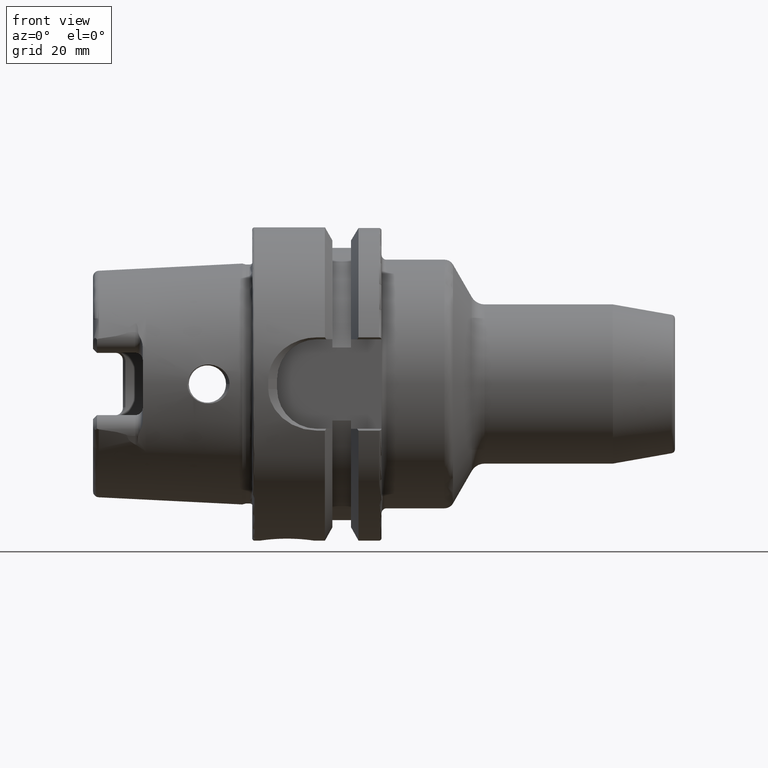
[diagram: clean part render]
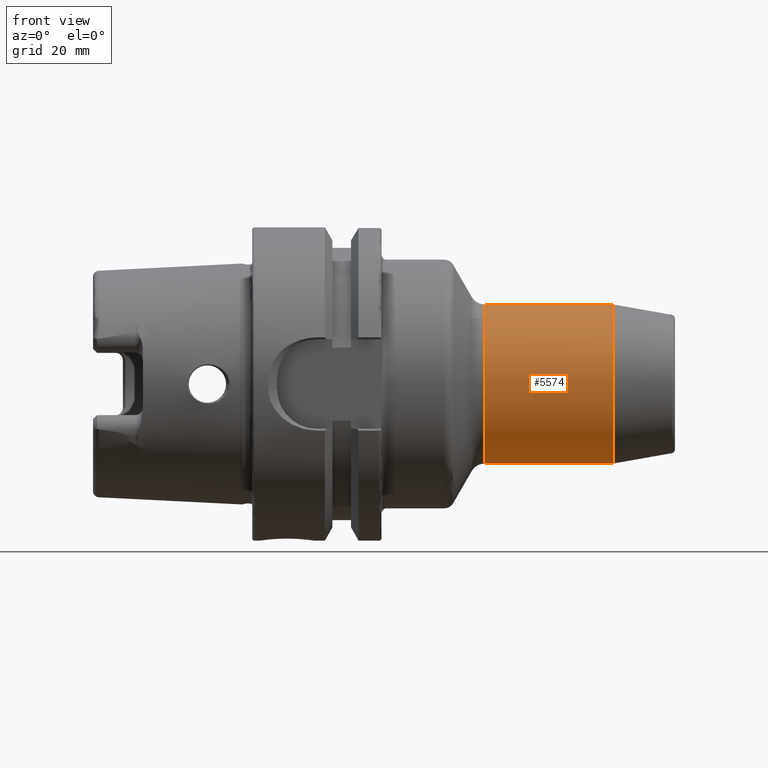
[diagram: same view with one face highlighted and labeled with its STEP entity id]
A machine part, front view. The second image highlights one B-rep face of the part: STEP entity #5574.
In plain terms, the highlighted cylindrical surface (partial cylindrical patch) has radius 16 mm, axis along (1, 0, 0).
Its self-contained STEP definition (entity closure, byte-faithful):
#2307=CARTESIAN_POINT('',(4.673205080757E1,0.E0,0.E0));
#2308=DIRECTION('',(1.E0,0.E0,0.E0));
#2309=DIRECTION('',(0.E0,0.E0,1.E0));
#2310=AXIS2_PLACEMENT_3D('',#2307,#2308,#2309);
#2312=DIRECTION('',(-1.E0,2.585703930443E-13,0.E0));
#2313=VECTOR('',#2312,2.579112918927E1);
#2314=CARTESIAN_POINT('',(7.252317999684E1,0.E0,1.6E1));
#2315=LINE('',#2314,#2313);
#2316=CARTESIAN_POINT('',(7.252317999684E1,0.E0,0.E0));
#2317=DIRECTION('',(-1.E0,0.E0,0.E0));
#2318=DIRECTION('',(0.E0,0.E0,-1.E0));
#2319=AXIS2_PLACEMENT_3D('',#2316,#2317,#2318);
#2321=DIRECTION('',(-1.E0,-2.587244453710E-13,0.E0));
#2322=VECTOR('',#2321,2.579112918927E1);
#2323=CARTESIAN_POINT('',(7.252317999684E1,0.E0,-1.6E1));
#2324=LINE('',#2323,#2322);
#2921=CARTESIAN_POINT('',(7.252317999684E1,0.E0,-1.6E1));
#2922=CARTESIAN_POINT('',(7.252317999684E1,0.E0,1.6E1));
#2923=VERTEX_POINT('',#2921);
#2924=VERTEX_POINT('',#2922);
#2979=CARTESIAN_POINT('',(4.673205080757E1,0.E0,1.6E1));
#2980=CARTESIAN_POINT('',(4.673205080757E1,0.E0,-1.6E1));
#2981=VERTEX_POINT('',#2979);
#2982=VERTEX_POINT('',#2980);
#5562=CARTESIAN_POINT('',(2.305E1,0.E0,0.E0));
#5563=DIRECTION('',(1.E0,0.E0,0.E0));
#5564=DIRECTION('',(0.E0,0.E0,1.E0));
#5565=AXIS2_PLACEMENT_3D('',#5562,#5563,#5564);
#5566=CYLINDRICAL_SURFACE('',#5565,1.6E1);
#5567=ORIENTED_EDGE('',*,*,#5527,.F.);
#5568=ORIENTED_EDGE('',*,*,#5557,.F.);
#5570=ORIENTED_EDGE('',*,*,#5569,.F.);
#5571=ORIENTED_EDGE('',*,*,#5553,.T.);
#5572=EDGE_LOOP('',(#5567,#5568,#5570,#5571));
#5573=FACE_OUTER_BOUND('',#5572,.F.);
#5574=ADVANCED_FACE('',(#5573),#5566,.T.);
#2311=CIRCLE('',#2310,1.6E1);
#2320=CIRCLE('',#2319,1.6E1);
#5527=EDGE_CURVE('',#2981,#2982,#2311,.T.);
#5553=EDGE_CURVE('',#2923,#2982,#2324,.T.);
#5557=EDGE_CURVE('',#2924,#2981,#2315,.T.);
#5569=EDGE_CURVE('',#2923,#2924,#2320,.T.);